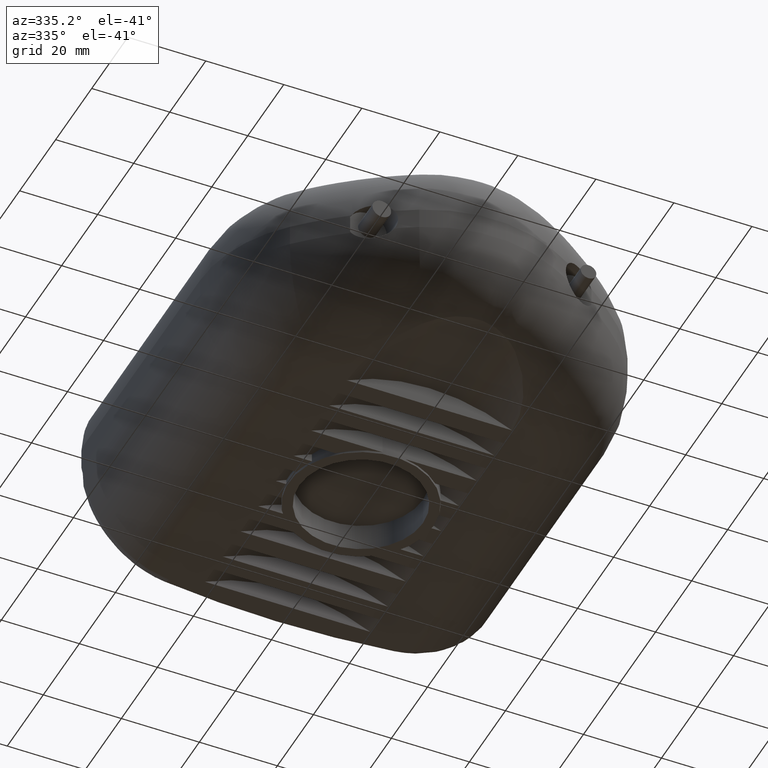
[diagram: clean part render]
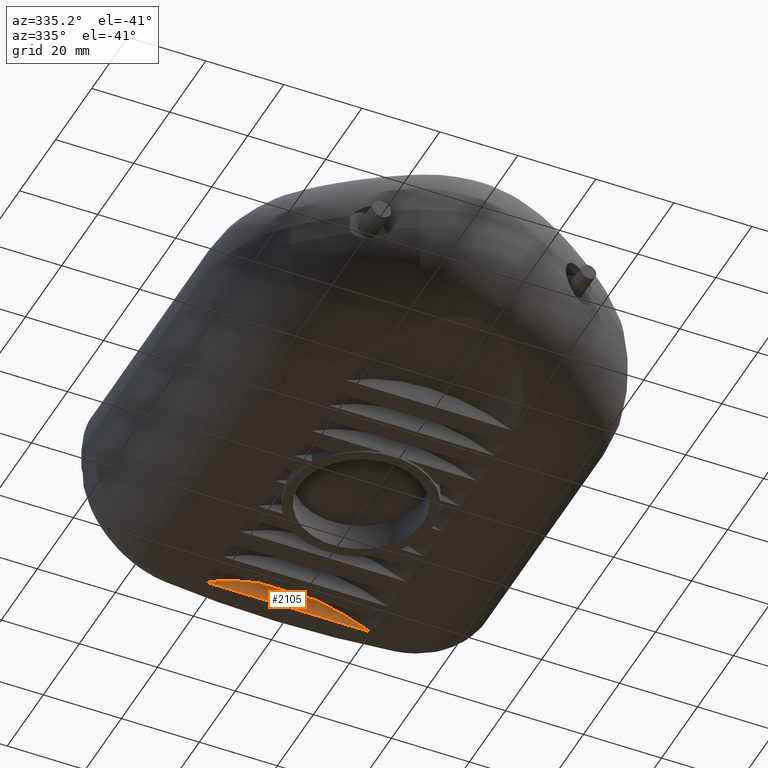
[diagram: same view with one face highlighted and labeled with its STEP entity id]
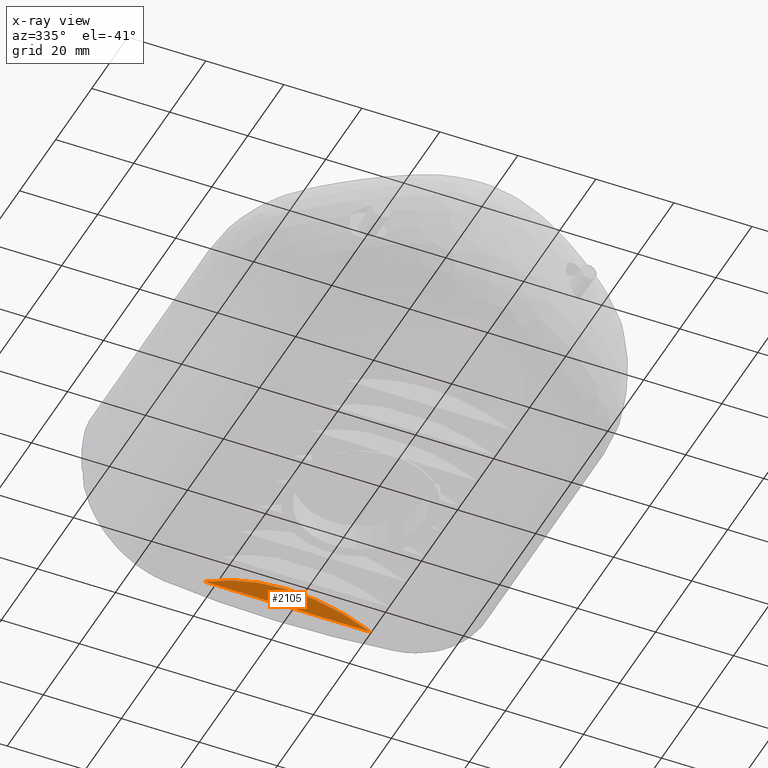
[diagram: x-ray of the same camera — body ghosted, the highlighted face saturated]
A machine part, auxiliary view. The second image highlights one B-rep face of the part: STEP entity #2105.
The next image is the same camera in x-ray: the body ghosted, the highlighted face saturated — about 0% of this face is hidden behind the body in this view.
In plain terms, the highlighted planar face has unit normal (0, -1, -0).
Its self-contained STEP definition (entity closure, byte-faithful):
#52=LINE('',#3515,#190);
#190=VECTOR('',#2588,42.4);
#369=PLANE('',#2293);
#484=FACE_OUTER_BOUND('',#637,.T.);
#637=EDGE_LOOP('',(#1598,#1599));
#792=CIRCLE('',#2292,45.05);
#928=VERTEX_POINT('',#3508);
#931=VERTEX_POINT('',#3513);
#1146=EDGE_CURVE('',#931,#928,#52,.T.);
#1219=EDGE_CURVE('',#931,#928,#792,.T.);
#1598=ORIENTED_EDGE('',*,*,#1219,.T.);
#1599=ORIENTED_EDGE('',*,*,#1146,.F.);
#2105=ADVANCED_FACE('',(#484),#369,.T.);
#2292=AXIS2_PLACEMENT_3D('',#3714,#2705,#2706);
#2293=AXIS2_PLACEMENT_3D('',#3715,#2707,#2708);
#2588=DIRECTION('',(-1.,-8.8026292149017E-18,0.));
#2705=DIRECTION('center_axis',(8.8026292149016E-18,-1.,-6.55586553069415E-31));
#2706=DIRECTION('ref_axis',(0.470588235294118,4.14241374818957E-18,-0.88235294117647));
#2707=DIRECTION('center_axis',(8.8026292149017E-18,-1.,-9.79087921713246E-31));
#2708=DIRECTION('ref_axis',(0.,0.,-1.));
#3508=CARTESIAN_POINT('',(-21.2,91.02,-26.5));
#3513=CARTESIAN_POINT('',(21.2,91.02,-26.5));
#3515=CARTESIAN_POINT('',(1.71176431285527E-15,91.02,-26.5));
#3714=CARTESIAN_POINT('Origin',(-4.33089357373159E-17,91.02,-66.25));
#3715=CARTESIAN_POINT('Origin',(-7.22170536132653E-15,91.02,-24.9569669574203));